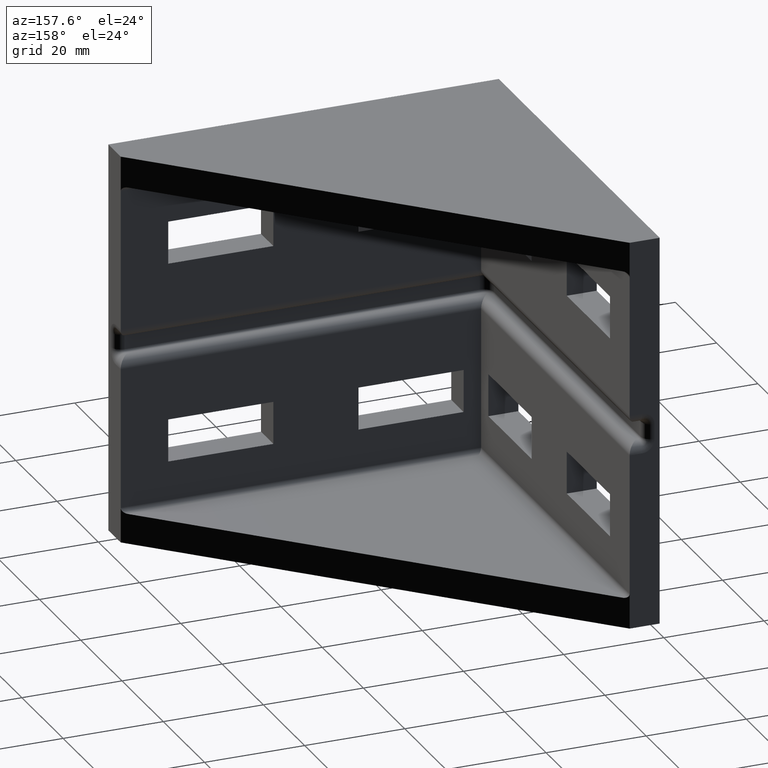
[diagram: clean part render]
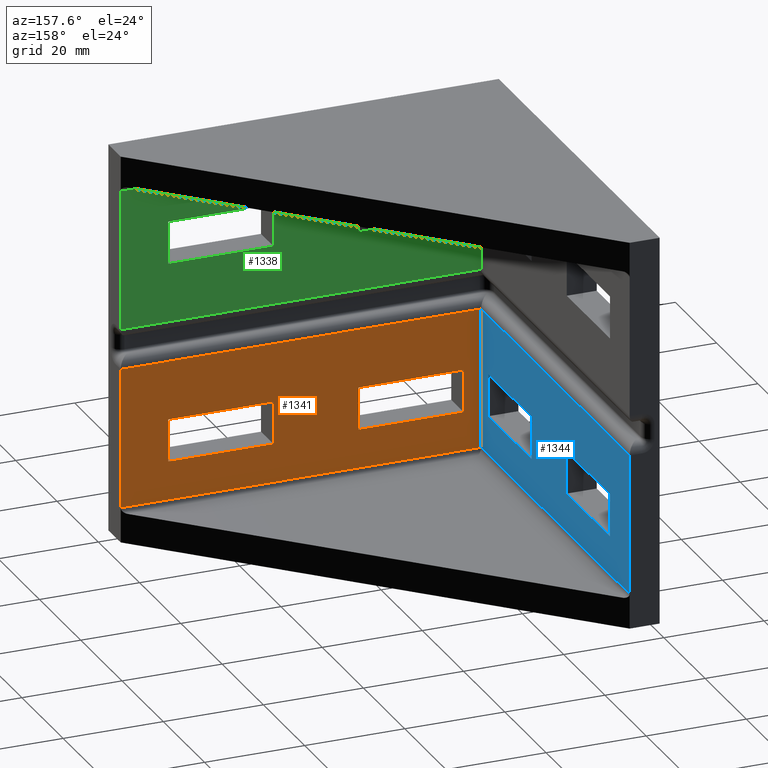
[diagram: same view with three faces highlighted in distinct colors, each labeled with its STEP entity id]
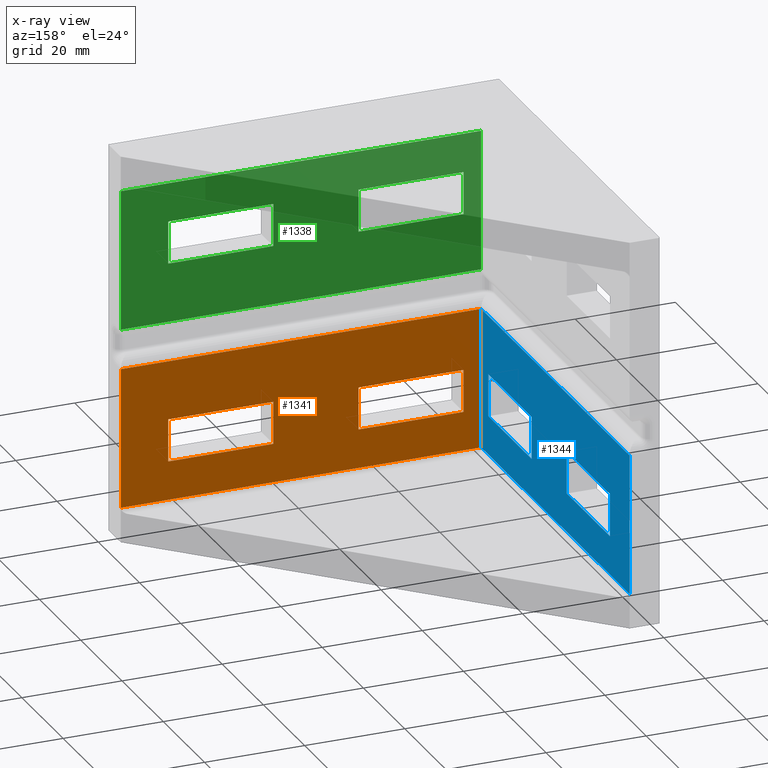
[diagram: x-ray of the same camera — body ghosted, the three highlighted faces saturated]
A machine part, auxiliary view with three faces highlighted in distinct colors.
The next image is the same camera in x-ray (body ghosted, the three faces saturated) — at least one of them is partly hidden behind the body in this view.
Their STEP definitions:

[orange] entity #1341 — the highlighted planar face has unit normal (0, -1, 0).
#63=FACE_BOUND('',#160,.T.);
#64=FACE_BOUND('',#161,.T.);
#76=FACE_OUTER_BOUND('',#159,.T.);
#159=EDGE_LOOP('',(#954,#955,#956,#957));
#160=EDGE_LOOP('',(#958,#959,#960,#961));
#161=EDGE_LOOP('',(#962,#963,#964,#965));
#292=LINE('',#2029,#451);
#293=LINE('',#2031,#452);
#294=LINE('',#2033,#453);
#295=LINE('',#2034,#454);
#296=LINE('',#2037,#455);
#297=LINE('',#2039,#456);
#298=LINE('',#2041,#457);
#299=LINE('',#2042,#458);
#300=LINE('',#2045,#459);
#301=LINE('',#2047,#460);
#302=LINE('',#2049,#461);
#303=LINE('',#2050,#462);
#451=VECTOR('',#1597,28.);
#452=VECTOR('',#1598,72.);
#453=VECTOR('',#1599,28.);
#454=VECTOR('',#1600,72.);
#455=VECTOR('',#1601,8.5);
#456=VECTOR('',#1602,21.);
#457=VECTOR('',#1603,8.49999999999999);
#458=VECTOR('',#1604,21.);
#459=VECTOR('',#1605,21.);
#460=VECTOR('',#1606,8.5);
#461=VECTOR('',#1607,21.);
#462=VECTOR('',#1608,8.50000000000001);
#635=VERTEX_POINT('',#2027);
#636=VERTEX_POINT('',#2028);
#637=VERTEX_POINT('',#2030);
#638=VERTEX_POINT('',#2032);
#639=VERTEX_POINT('',#2035);
#640=VERTEX_POINT('',#2036);
#641=VERTEX_POINT('',#2038);
#642=VERTEX_POINT('',#2040);
#643=VERTEX_POINT('',#2043);
#644=VERTEX_POINT('',#2044);
#645=VERTEX_POINT('',#2046);
#646=VERTEX_POINT('',#2048);
#758=EDGE_CURVE('',#635,#636,#292,.T.);
#759=EDGE_CURVE('',#636,#637,#293,.T.);
#760=EDGE_CURVE('',#638,#637,#294,.T.);
#761=EDGE_CURVE('',#638,#635,#295,.T.);
#762=EDGE_CURVE('',#639,#640,#296,.T.);
#763=EDGE_CURVE('',#640,#641,#297,.T.);
#764=EDGE_CURVE('',#641,#642,#298,.T.);
#765=EDGE_CURVE('',#642,#639,#299,.T.);
#766=EDGE_CURVE('',#643,#644,#300,.T.);
#767=EDGE_CURVE('',#644,#645,#301,.T.);
#768=EDGE_CURVE('',#645,#646,#302,.T.);
#769=EDGE_CURVE('',#646,#643,#303,.T.);
#954=ORIENTED_EDGE('',*,*,#758,.T.);
#955=ORIENTED_EDGE('',*,*,#759,.T.);
#956=ORIENTED_EDGE('',*,*,#760,.F.);
#957=ORIENTED_EDGE('',*,*,#761,.T.);
#958=ORIENTED_EDGE('',*,*,#762,.T.);
#959=ORIENTED_EDGE('',*,*,#763,.T.);
#960=ORIENTED_EDGE('',*,*,#764,.T.);
#961=ORIENTED_EDGE('',*,*,#765,.T.);
#962=ORIENTED_EDGE('',*,*,#766,.T.);
#963=ORIENTED_EDGE('',*,*,#767,.T.);
#964=ORIENTED_EDGE('',*,*,#768,.T.);
#965=ORIENTED_EDGE('',*,*,#769,.T.);
#1291=PLANE('',#1420);
#1341=ADVANCED_FACE('',(#76,#63,#64),#1291,.F.);
#1420=AXIS2_PLACEMENT_3D('',#2026,#1595,#1596);
#1595=DIRECTION('center_axis',(0.,-1.,0.));
#1596=DIRECTION('ref_axis',(0.,0.,-1.));
#1597=DIRECTION('',(0.,0.,-1.));
#1598=DIRECTION('',(-1.,0.,0.));
#1599=DIRECTION('',(0.,0.,-1.));
#1600=DIRECTION('',(1.,0.,0.));
#1601=DIRECTION('',(0.,0.,-1.));
#1602=DIRECTION('',(1.,-3.67662249851313E-15,4.95635278850516E-16));
#1603=DIRECTION('',(0.,0.,1.));
#1604=DIRECTION('',(-1.,3.67662249851313E-15,4.95635278850516E-16));
#1605=DIRECTION('',(1.,-3.71792543841734E-15,8.26058798084194E-17));
#1606=DIRECTION('',(0.,0.,1.));
#1607=DIRECTION('',(-1.,3.71792543841734E-15,1.65211759616839E-16));
#1608=DIRECTION('',(0.,0.,-1.));
#2026=CARTESIAN_POINT('Origin',(6.00000000000001,6.,78.));
#2027=CARTESIAN_POINT('',(78.,6.,35.));
#2028=CARTESIAN_POINT('',(78.,6.,7.00000000000001));
#2029=CARTESIAN_POINT('',(78.,6.,78.));
#2030=CARTESIAN_POINT('',(6.00000000000001,6.,6.99999999999999));
#2031=CARTESIAN_POINT('',(6.00000000000001,6.,7.00000000000001));
#2032=CARTESIAN_POINT('',(6.00000000000001,6.,35.));
#2033=CARTESIAN_POINT('',(6.00000000000001,6.,78.));
#2034=CARTESIAN_POINT('',(6.00000000000001,6.,35.));
#2035=CARTESIAN_POINT('',(47.5,6.,23.25));
#2036=CARTESIAN_POINT('',(47.5,5.99999999999983,14.75));
#2037=CARTESIAN_POINT('',(47.5,5.99999999999983,14.75));
#2038=CARTESIAN_POINT('',(68.5,5.99999999999976,14.75));
#2039=CARTESIAN_POINT('',(47.5,5.99999999999983,14.75));
#2040=CARTESIAN_POINT('',(68.5,5.99999999999976,23.25));
#2041=CARTESIAN_POINT('',(68.5,5.99999999999976,14.75));
#2042=CARTESIAN_POINT('',(47.5,5.99999999999983,23.25));
#2043=CARTESIAN_POINT('',(9.50000000000003,6.,14.75));
#2044=CARTESIAN_POINT('',(30.5,5.9999999999999,14.75));
#2045=CARTESIAN_POINT('',(30.5,5.9999999999999,14.75));
#2046=CARTESIAN_POINT('',(30.5,5.9999999999999,23.25));
#2047=CARTESIAN_POINT('',(30.5,5.9999999999999,14.75));
#2048=CARTESIAN_POINT('',(9.50000000000003,5.99999999999997,23.25));
#2049=CARTESIAN_POINT('',(30.5,5.9999999999999,23.25));
#2050=CARTESIAN_POINT('',(9.50000000000003,5.99999999999997,14.75));

[blue] entity #1344 — the highlighted planar face has unit normal (-1, -0, 0).
#69=FACE_BOUND('',#169,.T.);
#70=FACE_BOUND('',#170,.T.);
#79=FACE_OUTER_BOUND('',#168,.T.);
#168=EDGE_LOOP('',(#998,#999,#1000,#1001));
#169=EDGE_LOOP('',(#1002,#1003,#1004,#1005));
#170=EDGE_LOOP('',(#1006,#1007,#1008,#1009));
#294=LINE('',#2033,#453);
#330=LINE('',#2107,#489);
#331=LINE('',#2109,#490);
#332=LINE('',#2110,#491);
#333=LINE('',#2113,#492);
#334=LINE('',#2115,#493);
#335=LINE('',#2117,#494);
#336=LINE('',#2118,#495);
#337=LINE('',#2121,#496);
#338=LINE('',#2123,#497);
#339=LINE('',#2125,#498);
#340=LINE('',#2126,#499);
#453=VECTOR('',#1599,28.);
#489=VECTOR('',#1645,72.);
#490=VECTOR('',#1646,28.);
#491=VECTOR('',#1647,72.);
#492=VECTOR('',#1648,21.);
#493=VECTOR('',#1649,8.50000000000001);
#494=VECTOR('',#1650,21.);
#495=VECTOR('',#1651,8.49999999999999);
#496=VECTOR('',#1652,8.49999999999999);
#497=VECTOR('',#1653,21.);
#498=VECTOR('',#1654,8.50000000000001);
#499=VECTOR('',#1655,21.);
#637=VERTEX_POINT('',#2030);
#638=VERTEX_POINT('',#2032);
#671=VERTEX_POINT('',#2106);
#672=VERTEX_POINT('',#2108);
#673=VERTEX_POINT('',#2111);
#674=VERTEX_POINT('',#2112);
#675=VERTEX_POINT('',#2114);
#676=VERTEX_POINT('',#2116);
#677=VERTEX_POINT('',#2119);
#678=VERTEX_POINT('',#2120);
#679=VERTEX_POINT('',#2122);
#680=VERTEX_POINT('',#2124);
#760=EDGE_CURVE('',#638,#637,#294,.T.);
#798=EDGE_CURVE('',#637,#671,#330,.T.);
#799=EDGE_CURVE('',#672,#671,#331,.T.);
#800=EDGE_CURVE('',#672,#638,#332,.T.);
#801=EDGE_CURVE('',#673,#674,#333,.T.);
#802=EDGE_CURVE('',#675,#673,#334,.T.);
#803=EDGE_CURVE('',#676,#675,#335,.T.);
#804=EDGE_CURVE('',#674,#676,#336,.T.);
#805=EDGE_CURVE('',#677,#678,#337,.T.);
#806=EDGE_CURVE('',#679,#677,#338,.T.);
#807=EDGE_CURVE('',#680,#679,#339,.T.);
#808=EDGE_CURVE('',#678,#680,#340,.T.);
#998=ORIENTED_EDGE('',*,*,#760,.T.);
#999=ORIENTED_EDGE('',*,*,#798,.T.);
#1000=ORIENTED_EDGE('',*,*,#799,.F.);
#1001=ORIENTED_EDGE('',*,*,#800,.T.);
#1002=ORIENTED_EDGE('',*,*,#801,.F.);
#1003=ORIENTED_EDGE('',*,*,#802,.F.);
#1004=ORIENTED_EDGE('',*,*,#803,.F.);
#1005=ORIENTED_EDGE('',*,*,#804,.F.);
#1006=ORIENTED_EDGE('',*,*,#805,.F.);
#1007=ORIENTED_EDGE('',*,*,#806,.F.);
#1008=ORIENTED_EDGE('',*,*,#807,.F.);
#1009=ORIENTED_EDGE('',*,*,#808,.F.);
#1294=PLANE('',#1425);
#1344=ADVANCED_FACE('',(#79,#69,#70),#1294,.F.);
#1425=AXIS2_PLACEMENT_3D('',#2105,#1643,#1644);
#1599=DIRECTION('',(0.,0.,-1.));
#1643=DIRECTION('center_axis',(-1.,-1.56606980470128E-16,0.));
#1644=DIRECTION('ref_axis',(0.,-1.,0.));
#1645=DIRECTION('',(-1.56606980470128E-16,1.,0.));
#1646=DIRECTION('',(0.,0.,-1.));
#1647=DIRECTION('',(1.56606980470128E-16,-1.,0.));
#1648=DIRECTION('',(-1.23908819712629E-16,1.,4.95635278850516E-16));
#1649=DIRECTION('',(0.,0.,-1.));
#1650=DIRECTION('',(1.23908819712629E-16,-1.,4.95635278850516E-16));
#1651=DIRECTION('',(0.,0.,1.));
#1652=DIRECTION('',(0.,0.,1.));
#1653=DIRECTION('',(-1.65211759616839E-16,1.,8.26058798084194E-17));
#1654=DIRECTION('',(0.,0.,-1.));
#1655=DIRECTION('',(1.65211759616839E-16,-1.,1.65211759616839E-16));
#2030=CARTESIAN_POINT('',(6.00000000000001,6.,6.99999999999999));
#2032=CARTESIAN_POINT('',(6.00000000000001,6.,35.));
#2033=CARTESIAN_POINT('',(6.00000000000001,6.,78.));
#2105=CARTESIAN_POINT('Origin',(6.,78.,78.));
#2106=CARTESIAN_POINT('',(6.,78.,7.00000000000001));
#2107=CARTESIAN_POINT('',(6.,78.,7.00000000000001));
#2108=CARTESIAN_POINT('',(6.,78.,35.));
#2109=CARTESIAN_POINT('',(6.,78.,78.));
#2110=CARTESIAN_POINT('',(6.,78.,35.));
#2111=CARTESIAN_POINT('',(6.,47.5,14.75));
#2112=CARTESIAN_POINT('',(6.,68.5,14.75));
#2113=CARTESIAN_POINT('',(6.,47.5,14.75));
#2114=CARTESIAN_POINT('',(6.,47.5,23.25));
#2115=CARTESIAN_POINT('',(6.,47.5,14.75));
#2116=CARTESIAN_POINT('',(6.,68.5,23.25));
#2117=CARTESIAN_POINT('',(6.,47.5,23.25));
#2118=CARTESIAN_POINT('',(6.,68.5,14.75));
#2119=CARTESIAN_POINT('',(6.00000000000001,30.5,14.75));
#2120=CARTESIAN_POINT('',(6.00000000000001,30.5,23.25));
#2121=CARTESIAN_POINT('',(6.00000000000001,30.5,14.75));
#2122=CARTESIAN_POINT('',(6.00000000000001,9.5,14.75));
#2123=CARTESIAN_POINT('',(6.00000000000001,30.5,14.75));
#2124=CARTESIAN_POINT('',(6.00000000000001,9.5,23.25));
#2125=CARTESIAN_POINT('',(6.00000000000001,9.5,14.75));
#2126=CARTESIAN_POINT('',(6.00000000000001,30.5,23.25));

[green] entity #1338 — the highlighted planar face has unit normal (0, -1, 0).
#55=FACE_BOUND('',#149,.T.);
#56=FACE_BOUND('',#150,.T.);
#73=FACE_OUTER_BOUND('',#148,.T.);
#148=EDGE_LOOP('',(#910,#911,#912,#913));
#149=EDGE_LOOP('',(#914,#915,#916,#917));
#150=EDGE_LOOP('',(#918,#919,#920,#921));
#249=LINE('',#1941,#408);
#250=LINE('',#1943,#409);
#251=LINE('',#1945,#410);
#252=LINE('',#1946,#411);
#253=LINE('',#1949,#412);
#254=LINE('',#1951,#413);
#255=LINE('',#1953,#414);
#256=LINE('',#1954,#415);
#257=LINE('',#1957,#416);
#258=LINE('',#1959,#417);
#259=LINE('',#1961,#418);
#260=LINE('',#1962,#419);
#408=VECTOR('',#1548,28.);
#409=VECTOR('',#1549,72.);
#410=VECTOR('',#1550,28.);
#411=VECTOR('',#1551,72.);
#412=VECTOR('',#1552,21.);
#413=VECTOR('',#1553,8.5);
#414=VECTOR('',#1554,21.);
#415=VECTOR('',#1555,8.5);
#416=VECTOR('',#1556,8.50000000000001);
#417=VECTOR('',#1557,21.);
#418=VECTOR('',#1558,8.5);
#419=VECTOR('',#1559,21.);
#593=VERTEX_POINT('',#1939);
#594=VERTEX_POINT('',#1940);
#595=VERTEX_POINT('',#1942);
#596=VERTEX_POINT('',#1944);
#597=VERTEX_POINT('',#1947);
#598=VERTEX_POINT('',#1948);
#599=VERTEX_POINT('',#1950);
#600=VERTEX_POINT('',#1952);
#601=VERTEX_POINT('',#1955);
#602=VERTEX_POINT('',#1956);
#603=VERTEX_POINT('',#1958);
#604=VERTEX_POINT('',#1960);
#715=EDGE_CURVE('',#593,#594,#249,.T.);
#716=EDGE_CURVE('',#593,#595,#250,.T.);
#717=EDGE_CURVE('',#595,#596,#251,.T.);
#718=EDGE_CURVE('',#596,#594,#252,.T.);
#719=EDGE_CURVE('',#597,#598,#253,.T.);
#720=EDGE_CURVE('',#598,#599,#254,.T.);
#721=EDGE_CURVE('',#599,#600,#255,.T.);
#722=EDGE_CURVE('',#600,#597,#256,.T.);
#723=EDGE_CURVE('',#601,#602,#257,.T.);
#724=EDGE_CURVE('',#602,#603,#258,.T.);
#725=EDGE_CURVE('',#603,#604,#259,.T.);
#726=EDGE_CURVE('',#604,#601,#260,.T.);
#910=ORIENTED_EDGE('',*,*,#715,.F.);
#911=ORIENTED_EDGE('',*,*,#716,.T.);
#912=ORIENTED_EDGE('',*,*,#717,.T.);
#913=ORIENTED_EDGE('',*,*,#718,.T.);
#914=ORIENTED_EDGE('',*,*,#719,.T.);
#915=ORIENTED_EDGE('',*,*,#720,.T.);
#916=ORIENTED_EDGE('',*,*,#721,.T.);
#917=ORIENTED_EDGE('',*,*,#722,.T.);
#918=ORIENTED_EDGE('',*,*,#723,.T.);
#919=ORIENTED_EDGE('',*,*,#724,.T.);
#920=ORIENTED_EDGE('',*,*,#725,.T.);
#921=ORIENTED_EDGE('',*,*,#726,.T.);
#1288=PLANE('',#1417);
#1338=ADVANCED_FACE('',(#73,#55,#56),#1288,.F.);
#1417=AXIS2_PLACEMENT_3D('',#1938,#1546,#1547);
#1546=DIRECTION('center_axis',(0.,-1.,0.));
#1547=DIRECTION('ref_axis',(0.,0.,-1.));
#1548=DIRECTION('',(0.,0.,-1.));
#1549=DIRECTION('',(1.,0.,0.));
#1550=DIRECTION('',(0.,0.,-1.));
#1551=DIRECTION('',(-1.,0.,0.));
#1552=DIRECTION('',(-1.,3.71792543841734E-15,0.));
#1553=DIRECTION('',(-4.08170229641602E-16,1.45011195812686E-30,-1.));
#1554=DIRECTION('',(1.,-3.71792543841734E-15,0.));
#1555=DIRECTION('',(-4.08170229641602E-16,1.45011195812686E-30,1.));
#1556=DIRECTION('',(0.,0.,-1.));
#1557=DIRECTION('',(1.,-3.67662249851313E-15,3.30423519233677E-16));
#1558=DIRECTION('',(0.,0.,1.));
#1559=DIRECTION('',(-1.,3.67662249851313E-15,0.));
#1938=CARTESIAN_POINT('Origin',(6.00000000000001,6.,78.));
#1939=CARTESIAN_POINT('',(6.00000000000001,6.,71.));
#1940=CARTESIAN_POINT('',(6.00000000000001,6.,43.));
#1941=CARTESIAN_POINT('',(6.00000000000001,6.,78.));
#1942=CARTESIAN_POINT('',(78.,6.,71.));
#1943=CARTESIAN_POINT('',(6.00000000000001,6.,71.));
#1944=CARTESIAN_POINT('',(78.,6.,43.));
#1945=CARTESIAN_POINT('',(78.,6.,78.));
#1946=CARTESIAN_POINT('',(6.00000000000001,6.,43.));
#1947=CARTESIAN_POINT('',(30.5,6.,63.25));
#1948=CARTESIAN_POINT('',(9.50000000000002,5.99999999999997,63.25));
#1949=CARTESIAN_POINT('',(30.5,5.9999999999999,63.25));
#1950=CARTESIAN_POINT('',(9.50000000000002,5.99999999999997,54.75));
#1951=CARTESIAN_POINT('',(9.50000000000002,5.99999999999997,63.25));
#1952=CARTESIAN_POINT('',(30.5,5.9999999999999,54.75));
#1953=CARTESIAN_POINT('',(30.5,5.9999999999999,54.75));
#1954=CARTESIAN_POINT('',(30.5,5.9999999999999,63.25));
#1955=CARTESIAN_POINT('',(47.5,6.,63.25));
#1956=CARTESIAN_POINT('',(47.5,5.99999999999983,54.75));
#1957=CARTESIAN_POINT('',(47.5,5.99999999999983,63.25));
#1958=CARTESIAN_POINT('',(68.5,5.99999999999976,54.75));
#1959=CARTESIAN_POINT('',(47.5,5.99999999999983,54.75));
#1960=CARTESIAN_POINT('',(68.5,5.99999999999976,63.25));
#1961=CARTESIAN_POINT('',(68.5,5.99999999999976,63.25));
#1962=CARTESIAN_POINT('',(47.5,5.99999999999983,63.25));